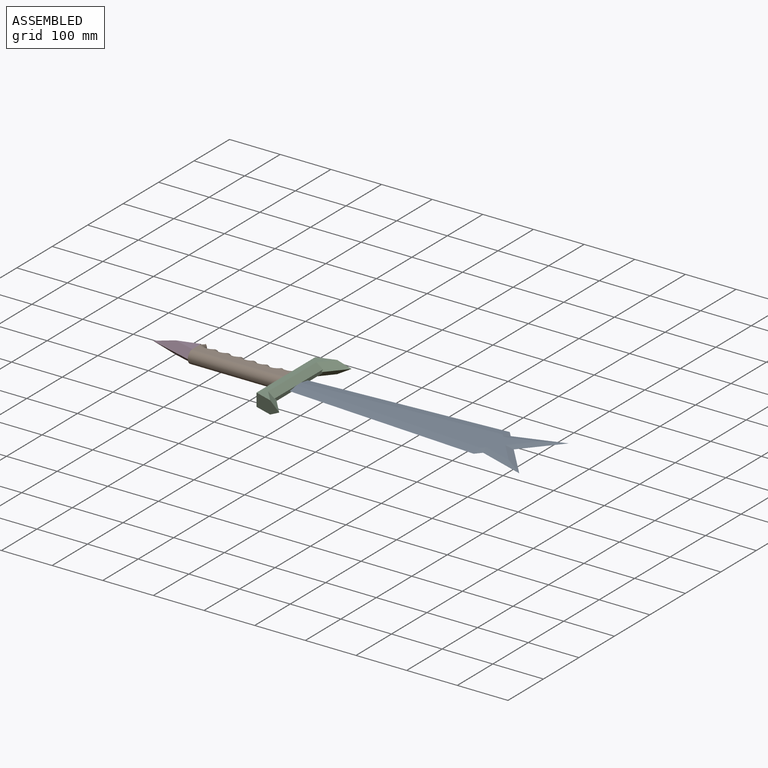
[diagram: assembled view]
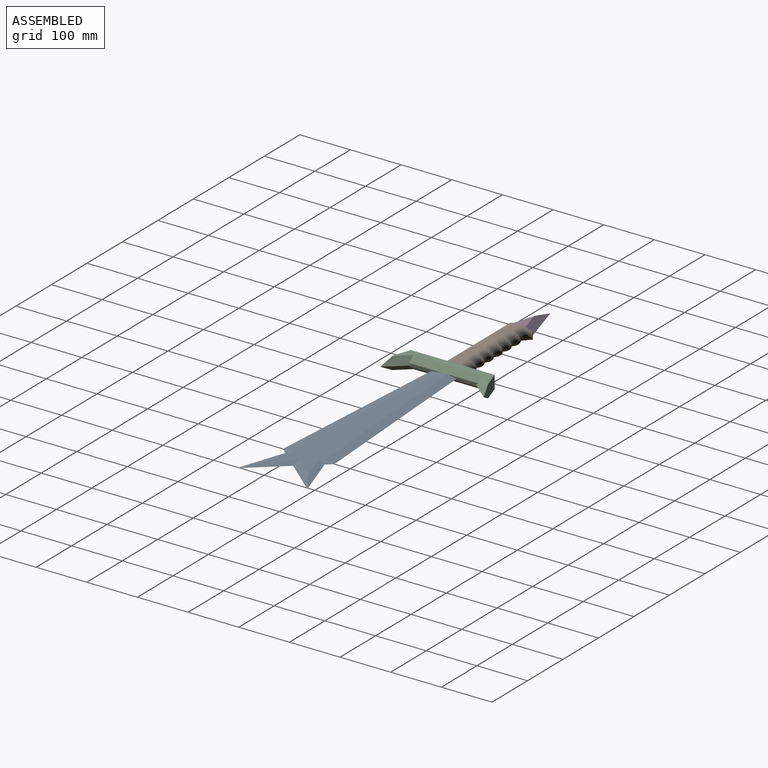
[diagram: assembled view, second angle]
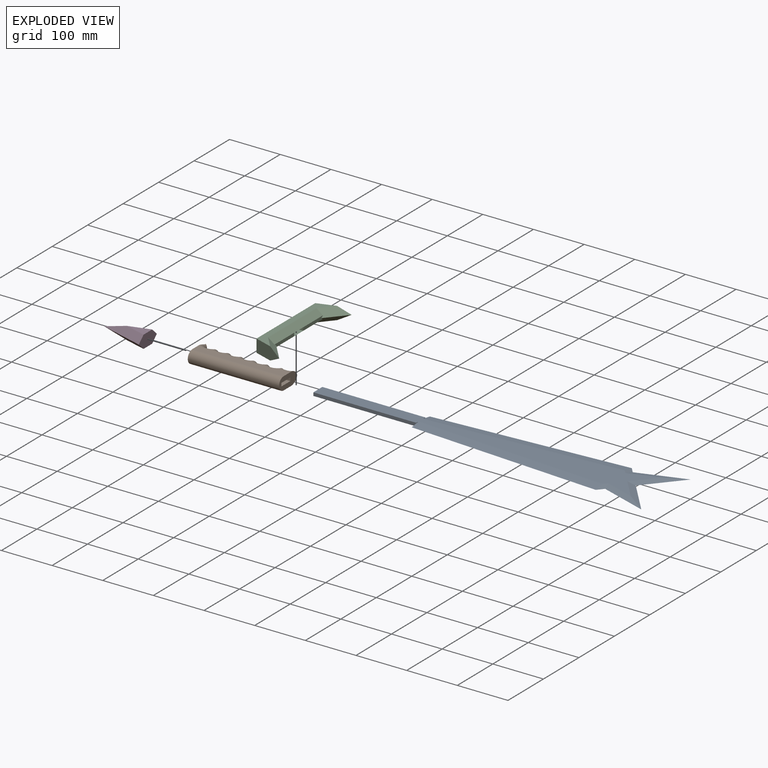
[diagram: exploded view]
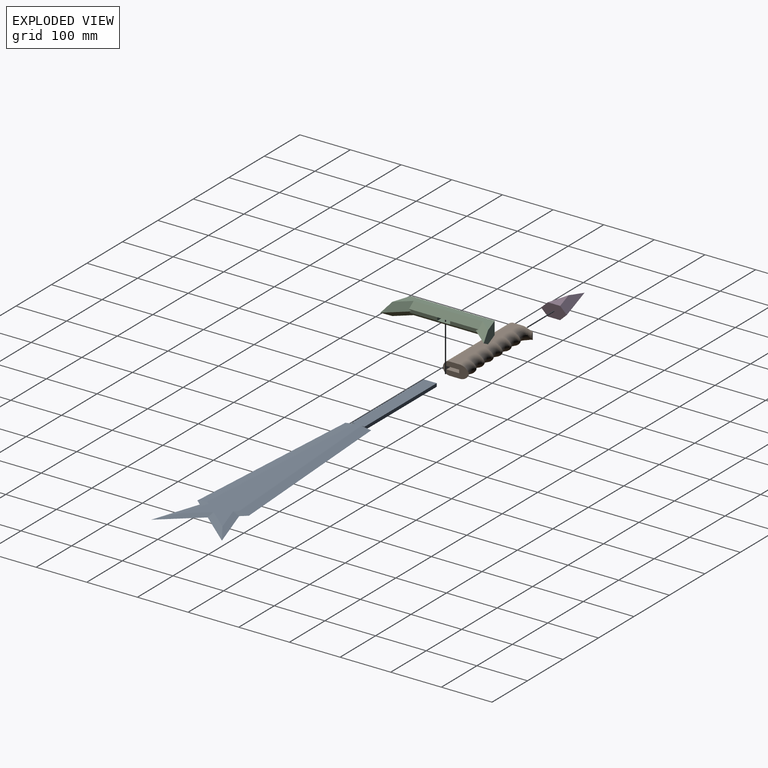
[diagram: exploded view, second angle]
ASSEMBLY  parts=4 mates=3
PART A: 27 faces, bbox 687.4x139.7x6.4 mm
  f0: plane 12.7x4.22mm, normal (-1,0,0), area 26.8mm2, adj f16,f19,f24
  f1: plane 12.7x4.22mm, normal (-1,0,0), area 26.8mm2, adj f17,f18,f26
  f2: plane 648.02x86.66mm, normal (0,0,1), area 22267.9mm2, adj f4,f5,f6,f7,f8,f9,f18,f19
  f3: plane 648.02x86.66mm, normal (0,0,-1), area 22267.9mm2, adj f10,f11,f12,f13,f14,f15,f16,f17
  f4: plane 26.7x10.58mm, normal (0.18,0.16,0.97), area 168.3mm2, adj f2,f5,f15,f19
  f5: plane 97.09x45.75mm, normal (-0.08,0.23,0.97), area 1039.7mm2, adj f2,f4,f6,f14
  f6: plane 76.47x69.85mm, normal (0.18,-0.16,0.97), area 974.9mm2, adj f2,f5,f7,f13
  f7: plane 76.47x69.85mm, normal (0.18,0.16,0.97), area 974.9mm2, adj f2,f6,f8,f12
  f8: plane 97.09x45.75mm, normal (-0.08,-0.23,0.97), area 1039.7mm2, adj f2,f7,f9,f11
  f9: plane 26.7x10.58mm, normal (0.18,-0.16,0.97), area 168.3mm2, adj f2,f8,f10,f18
  f10: plane 26.7x10.58mm, normal (0.18,-0.16,-0.97), area 168.3mm2, adj f3,f9,f11,f17
  f11: plane 97.09x45.75mm, normal (-0.08,-0.23,-0.97), area 1039.7mm2, adj f3,f8,f10,f12
  f12: plane 76.47x69.85mm, normal (0.18,0.16,-0.97), area 974.9mm2, adj f3,f7,f11,f13
  f13: plane 76.47x69.85mm, normal (0.18,-0.16,-0.97), area 974.9mm2, adj f3,f6,f12,f14
  f14: plane 97.09x45.75mm, normal (-0.08,0.23,-0.97), area 1039.7mm2, adj f3,f5,f13,f15
  f15: plane 26.7x10.58mm, normal (0.18,0.16,-0.97), area 168.3mm2, adj f3,f4,f14,f16
  f16: plane 381x44.49mm, normal (-0.01,0.16,-0.99), area 7371mm2, adj f0,f3,f15,f19,f23
  f17: plane 381x44.49mm, normal (-0.01,-0.16,-0.99), area 7371mm2, adj f1,f3,f10,f18,f20
  f18: plane 381x44.49mm, normal (-0.01,-0.16,0.99), area 7371mm2, adj f1,f2,f9,f17,f21
  f19: plane 381x44.49mm, normal (-0.01,0.16,0.99), area 7371mm2, adj f0,f2,f4,f16,f22
  f20: plane 6.39x1.06mm, normal (1,0,0), area 3.4mm2, adj f3,f17,f26
  f21: plane 6.39x1.06mm, normal (1,0,0), area 3.4mm2, adj f2,f18,f26
  f22: plane 6.39x1.06mm, normal (1,0,0), area 3.4mm2, adj f2,f19,f24
  f23: plane 6.39x1.06mm, normal (1,0,0), area 3.4mm2, adj f3,f16,f24
  f24: plane 203.2x6.35mm, normal (0,1,0), area 1290.3mm2, adj f0,f2,f3,f22,f23,f25
  f25: plane 25.4x6.35mm, normal (-1,0,0), area 161.3mm2, adj f2,f3,f24,f26
  f26: plane 203.2x6.35mm, normal (0,-1,0), area 1290.3mm2, adj f1,f2,f3,f20,f21,f25
PART B: 24 faces, bbox 224.1x50.8x25.4 mm
  f0: plane 50.8x25.4mm, normal (1,0,0), area 949.9mm2, adj f3,f4,f5,f18,f19,f20,f21,f22
  f1: plane 15.24x2.54mm, normal (0,1,0), area 26.4mm2, adj f2,f7
  f2: plane 50.8x25.4mm, normal (-1,0,0), area 1125.7mm2, adj f1,f3,f4,f7,f18
  f3: plane 180.34x20.94mm, normal (0,0,1), area 2613.7mm2, adj f0,f2,f5,f6,f7,f8,f9,f10
  f4: plane 180.34x20.94mm, normal (0,0,-1), area 2613.7mm2, adj f0,f2,f5,f6,f7,f8,f9,f10
  f5: torus R=27.09mm, axis (0,0,1), area 994.5mm2, adj f0,f3,f4,f12
  f6: torus R=25.4mm, axis (0,0,1), area 1229.8mm2, adj f3,f4,f12,f13
  f7: torus R=25.4mm, axis (0,0,1), area 1316.5mm2, adj f1,f2,f3,f4,f14
  f8: torus R=25.4mm, axis (0,0,1), area 1092.6mm2, adj f3,f4,f13,f15
  f9: torus R=25.4mm, axis (0,0,1), area 1092.6mm2, adj f3,f4,f14,f17
  f10: torus R=25.4mm, axis (0,0,1), area 1092.6mm2, adj f3,f4,f15,f16
  f11: torus R=25.4mm, axis (0,0,1), area 1092.6mm2, adj f3,f4,f16,f17
  f12: bspline ~25.4x18.19mm, area 54.5mm2, adj f5,f6
  f13: bspline ~25.4x19.23mm, area 56.7mm2, adj f6,f8
  f14: bspline ~25.4x19.23mm, area 56.7mm2, adj f7,f9
  f15: bspline ~25.4x19.23mm, area 56.7mm2, adj f8,f10
  f16: bspline ~25.4x19.23mm, area 56.7mm2, adj f10,f11
  f17: bspline ~25.4x19.23mm, area 56.7mm2, adj f9,f11
  f18: cylinder r=12.7mm len=180.34mm, axis (-1,0,0), area 7195.2mm2, adj f0,f2,f3,f4
  f19: plane 177.8x25.4mm, normal (0,0,-1), area 4516.1mm2, adj f0,f20,f22,f23
  f20: plane 177.8x6.35mm, normal (0,1,0), area 1129mm2, adj f0,f19,f21,f23
  f21: plane 177.8x25.4mm, normal (0,0,1), area 4516.1mm2, adj f0,f20,f22,f23
  f22: plane 177.8x6.35mm, normal (0,-1,0), area 1129mm2, adj f0,f19,f21,f23
  f23: plane 25.4x6.35mm, normal (1,0,0), area 161.3mm2, adj f19,f20,f21,f22
PART C: 17 faces, bbox 58.4x204.2x25.4 mm
  f0: plane 55.68x6.35mm, normal (1,0,0), area 338.1mm2, adj f7,f8,f13,f15,f16
  f1: plane 55.68x6.35mm, normal (1,0,0), area 338.1mm2, adj f9,f10,f11,f15,f16
  f2: plane 165.6x25.4mm, normal (-1,0,0), area 4045mm2, adj f3,f4,f5,f6,f11,f12,f13,f14
  f3: plane 58.43x25.4mm, normal (-0.31,0.95,0), area 1251.2mm2, adj f2,f5,f6,f9,f10
  f4: plane 58.43x25.4mm, normal (-0.31,-0.95,0), area 1251.2mm2, adj f2,f5,f6,f7,f8
  f5: plane 188.81x35.13mm, normal (0,0,1), area 2578.1mm2, adj f2,f3,f4,f7,f9,f16
  f6: plane 188.81x35.13mm, normal (0,0,-1), area 2578.1mm2, adj f2,f3,f4,f8,f10,f15
  f7: plane 45.73x38.6mm, normal (0.54,0.46,0.71), area 722.1mm2, adj f0,f4,f5,f8,f16
  f8: plane 45.73x38.6mm, normal (0.54,0.46,-0.71), area 722.1mm2, adj f0,f4,f6,f7,f15
  f9: plane 45.73x38.6mm, normal (0.54,-0.46,0.71), area 722.1mm2, adj f1,f3,f5,f10,f16
  f10: plane 45.73x38.6mm, normal (0.54,-0.46,-0.71), area 722.1mm2, adj f1,f3,f6,f9,f15
  f11: plane 25.4x6.35mm, normal (0,-1,0), area 161.3mm2, adj f1,f2,f12,f14
  f12: plane 25.4x25.4mm, normal (0,0,-1), area 645.2mm2, adj f2,f11,f13,f16
  f13: plane 25.4x6.35mm, normal (0,1,0), area 161.3mm2, adj f0,f2,f12,f14
  f14: plane 25.4x25.4mm, normal (0,0,1), area 645.2mm2, adj f2,f11,f13,f15
  f15: plane 136.77x12.7mm, normal (0.6,0,-0.8), area 2168.1mm2, adj f0,f1,f6,f8,f10,f14
  f16: plane 136.77x12.7mm, normal (0.6,0,0.8), area 2168.1mm2, adj f0,f1,f5,f7,f9,f12
PART D: 7 faces, bbox 86.4x50.8x25.4 mm
  f0: plane 50.8x25.4mm, normal (1,0,0), area 954.1mm2, adj f1,f2,f3,f4,f5,f6
  f1: plane 41.35x24.32mm, normal (0,0,1), area 502.9mm2, adj f0,f5,f6
  f2: plane 41.35x24.32mm, normal (0,0,-1), area 502.9mm2, adj f0,f3,f4
  f3: plane 86.36x25.4mm, normal (-0.2,-0.68,-0.71), area 1195.5mm2, adj f0,f2,f4,f5
  f4: plane 86.36x25.4mm, normal (-0.2,0.68,-0.71), area 1195.5mm2, adj f0,f2,f3,f6
  f5: plane 86.36x25.4mm, normal (-0.2,-0.68,0.71), area 1195.5mm2, adj f0,f1,f3,f6
  f6: plane 86.36x25.4mm, normal (-0.2,0.68,0.71), area 1195.5mm2, adj f0,f1,f4,f5
PLACE A t=(-67.51,-48.99,115.15)mm
PLACE B t=(-318.08,-48.02,102.45)mm
PLACE C t=(-244.99,-55.41,102.45)mm
PLACE D t=(-477.22,-59.47,102.45)mm
MATE fastened D.f0 <-> B.f2  axis (1,0,0) through (-442.84,-45.45,115.15)mm
MATE fastened B.f21 <-> C.f14  axis (0,0,1) through (-262.5,-38.83,111.98)mm
MATE fastened B.f23 <-> A.f25  axis (1,0,0) through (-440.3,-51.53,115.15)mm
